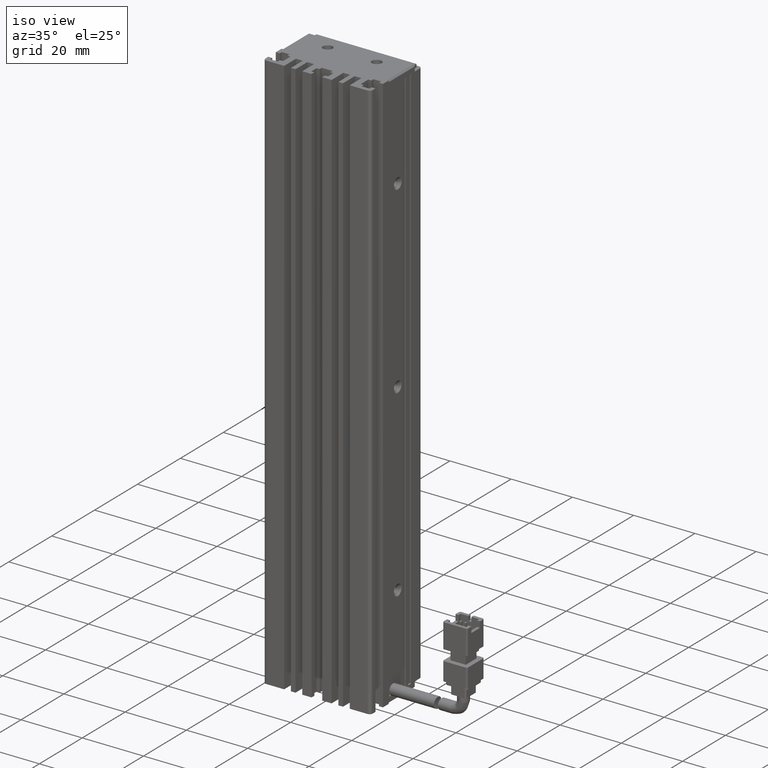
[diagram: clean part render]
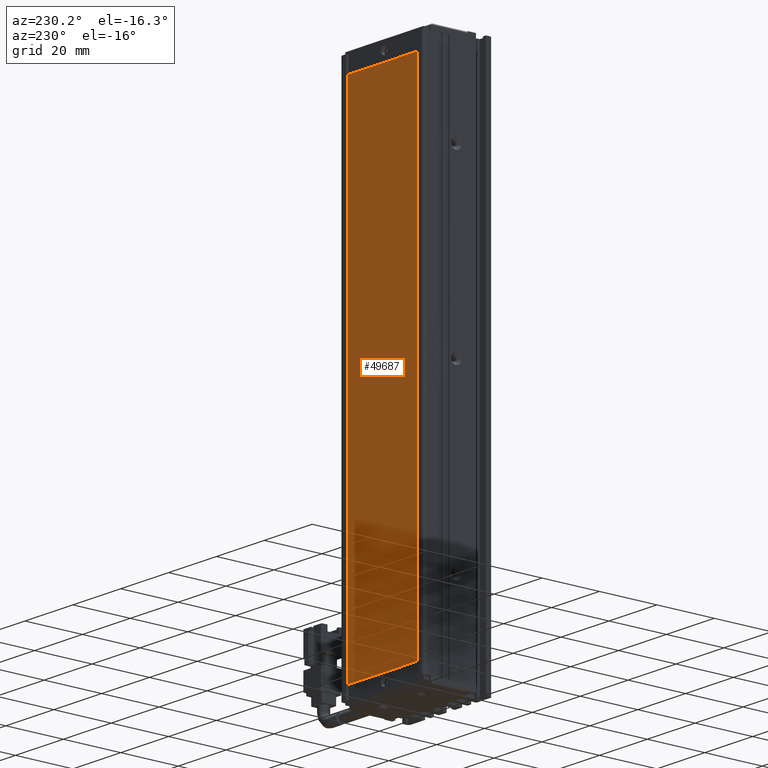
[diagram: tour spotlight — one face highlighted and labeled with its STEP entity id]
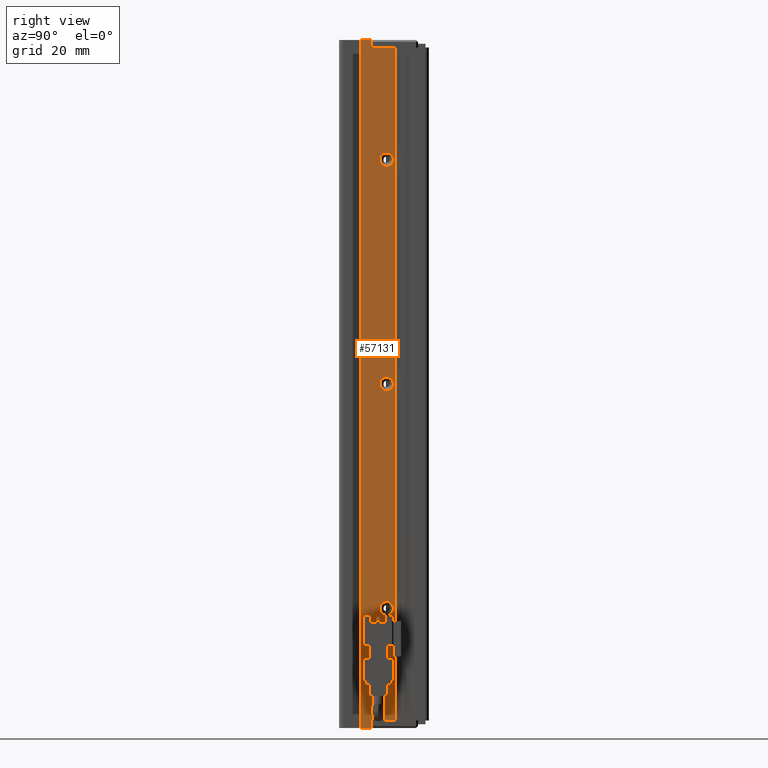
[diagram: tour spotlight — one face highlighted and labeled with its STEP entity id]
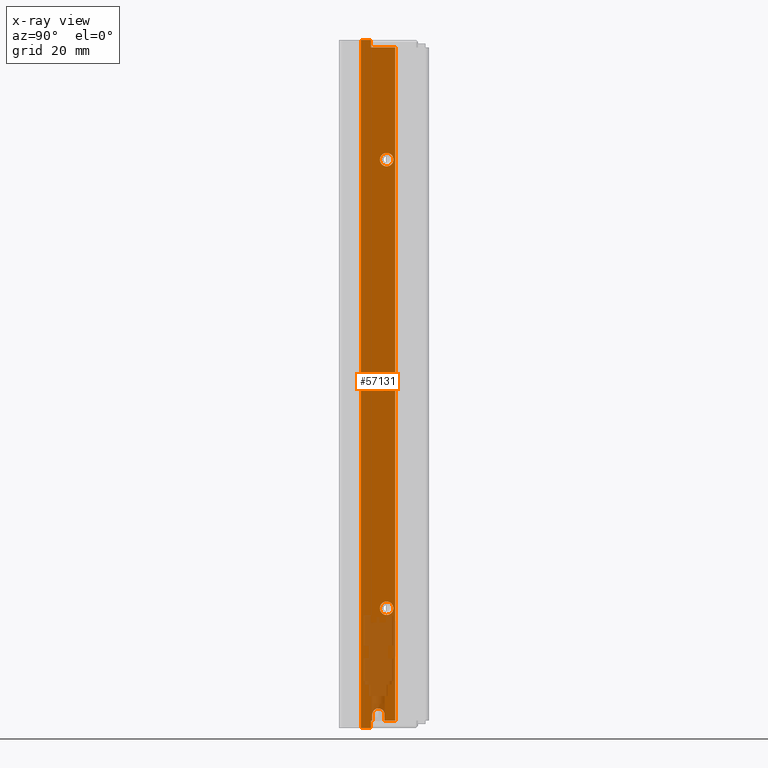
[diagram: x-ray of the same camera — body ghosted, this tour face saturated]
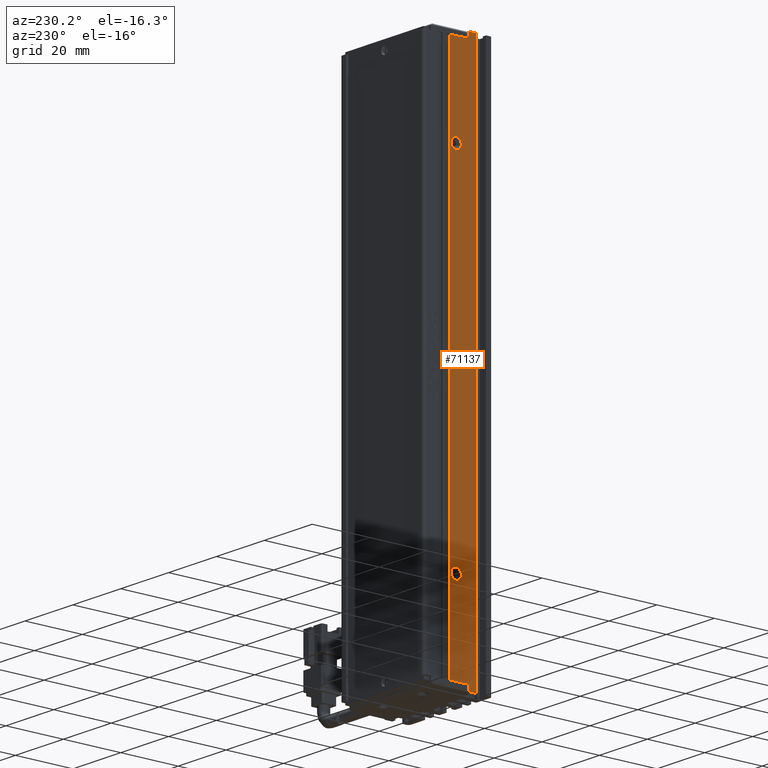
[diagram: tour spotlight — one face highlighted and labeled with its STEP entity id]
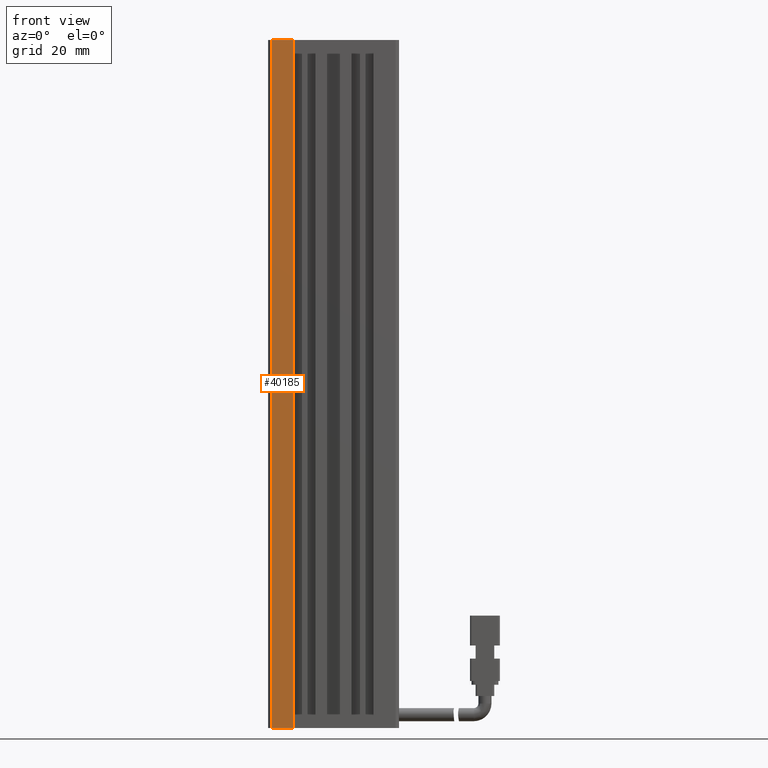
[diagram: tour spotlight — one face highlighted and labeled with its STEP entity id]
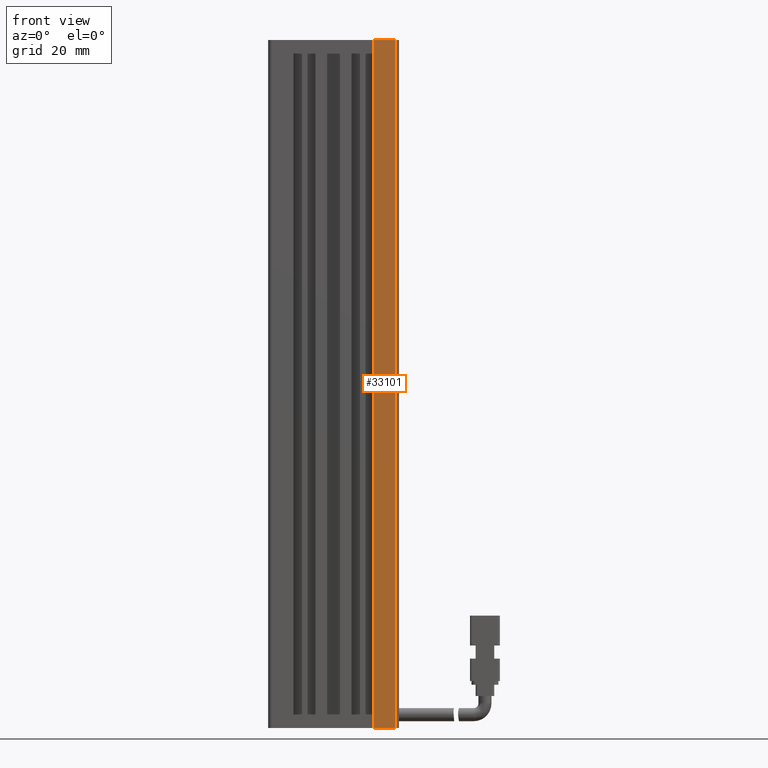
[diagram: tour spotlight — one face highlighted and labeled with its STEP entity id]
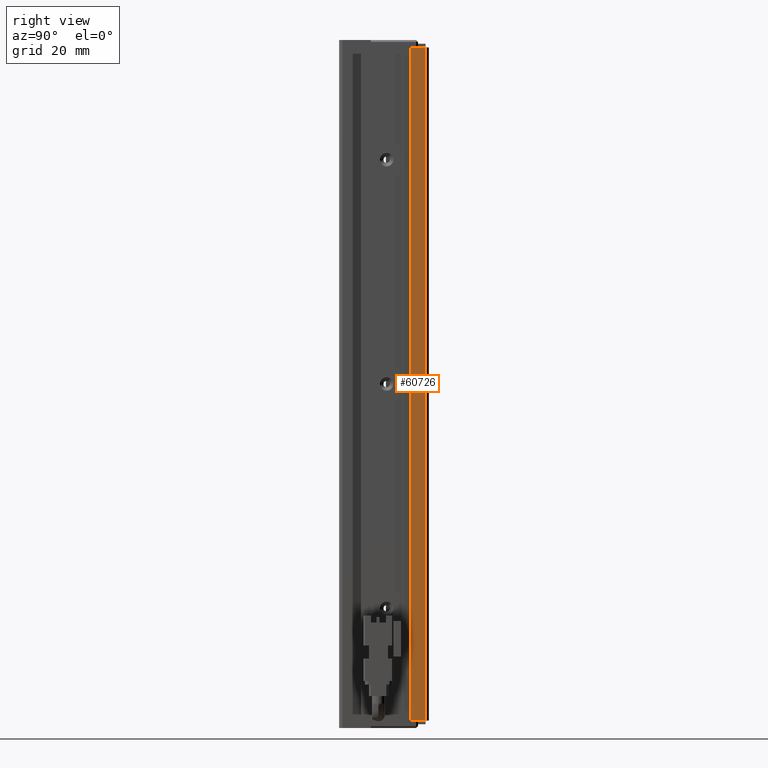
[diagram: tour spotlight — one face highlighted and labeled with its STEP entity id]
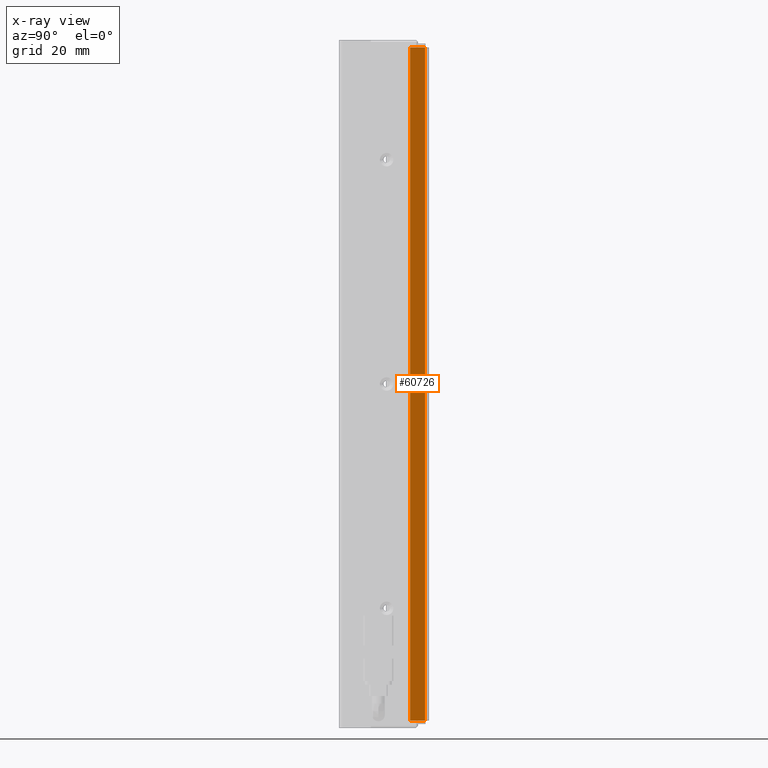
[diagram: x-ray of the same camera — body ghosted, this tour face saturated]
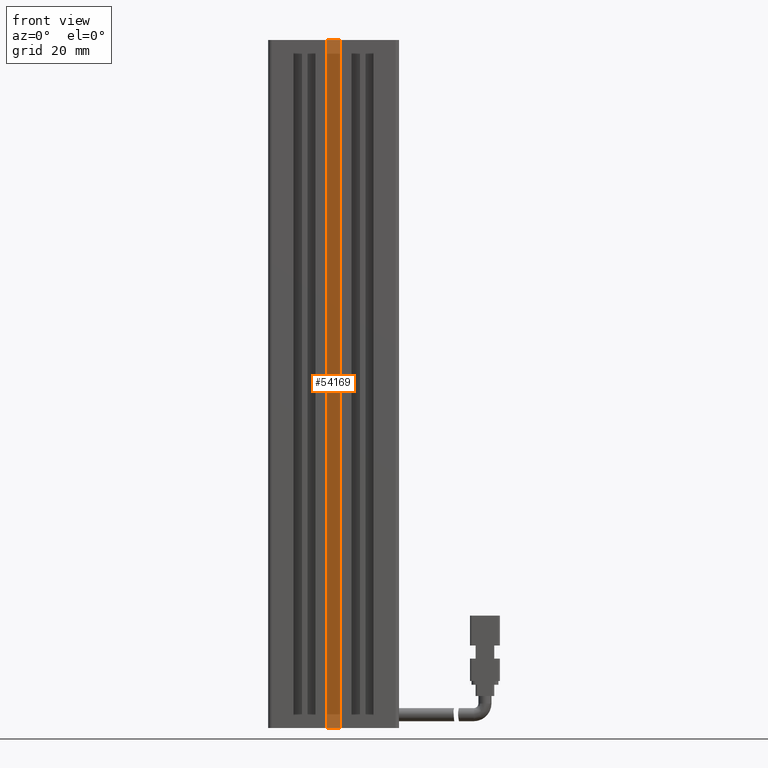
[diagram: tour spotlight — one face highlighted and labeled with its STEP entity id]
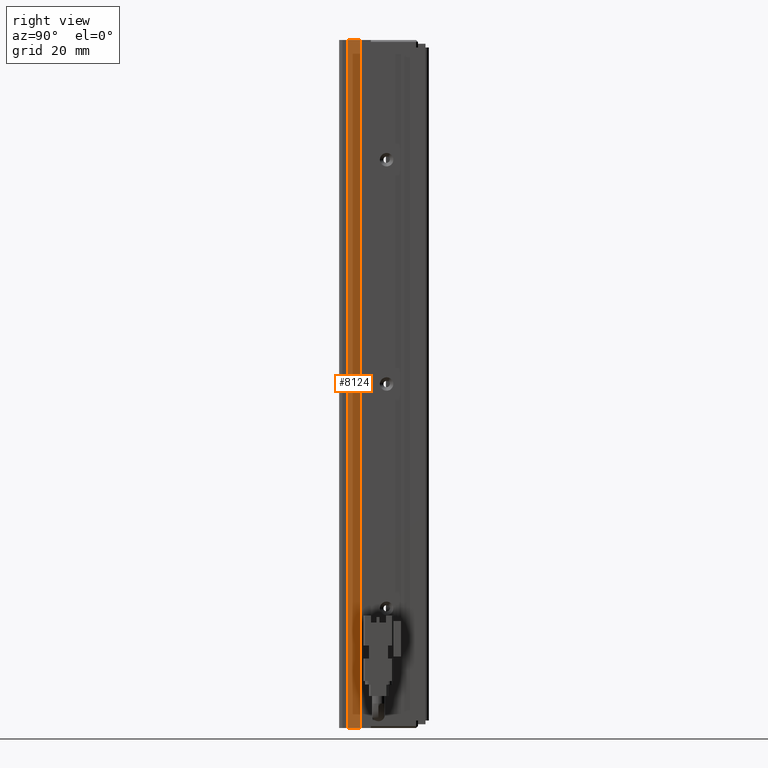
[diagram: tour spotlight — one face highlighted and labeled with its STEP entity id]
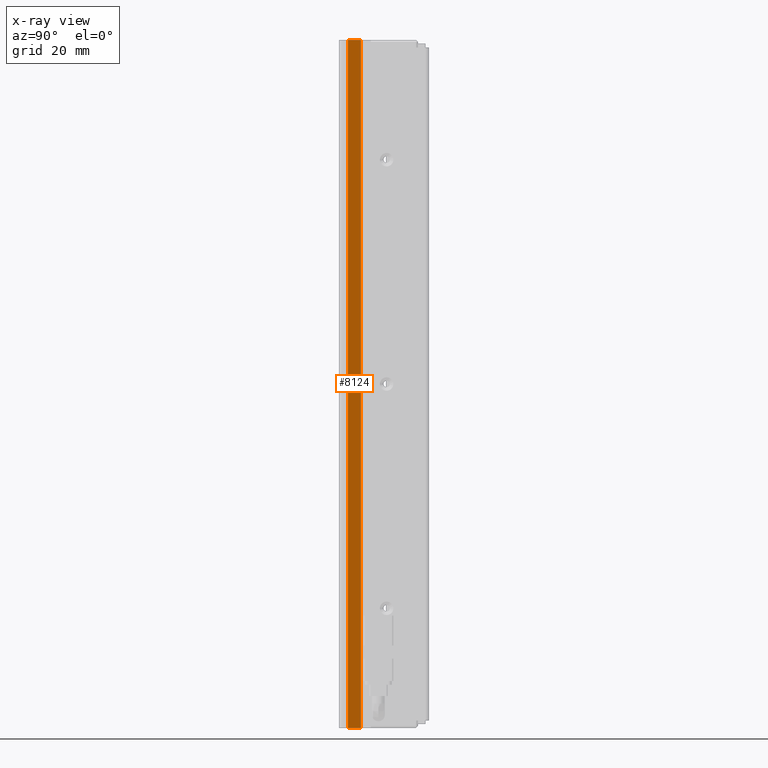
[diagram: x-ray of the same camera — body ghosted, this tour face saturated]
A machine part: a face-by-face anatomy tour. The part has 1721 B-rep faces; the first image is the clean iso view, then the 8 largest visible faces are spotlighted one at a time (largest first), each with its STEP entity span.

Face 1 — auxiliary view, entity #49687. In plain terms, the highlighted planar face has unit normal (0, 1, 0).
Definition (entity closure, byte-faithful):
#4779 = CARTESIAN_POINT ( 'NONE',  ( 25.93512251846635100, 34.29073232304837400, -30.53415309237264500 ) ) ;
#5516 = DIRECTION ( 'NONE',  ( -1.000000000000000000, 0.0000000000000000000, 0.0000000000000000000 ) ) ;
#7039 = ORIENTED_EDGE ( 'NONE', *, *, #55345, .T. ) ;
#8228 = DIRECTION ( 'NONE',  ( 1.224510688924804800E-016, 0.0000000000000000000, 1.000000000000000000 ) ) ;
#10280 = LINE ( 'NONE', #31677, #40838 ) ;
#11248 = DIRECTION ( 'NONE',  ( 0.0000000000000000000, -0.0000000000000000000, 1.000000000000000000 ) ) ;
#15078 = LINE ( 'NONE', #72955, #40874 ) ;
#18647 = LINE ( 'NONE', #20172, #70001 ) ;
#20172 = CARTESIAN_POINT ( 'NONE',  ( 25.93512251846632900, 34.29073232304837400, -200.5341530923726600 ) ) ;
#21068 = ORIENTED_EDGE ( 'NONE', *, *, #74533, .T. ) ;
#21528 = EDGE_LOOP ( 'NONE', ( #21068, #7039, #42675, #31143 ) ) ;
#27490 = CARTESIAN_POINT ( 'NONE',  ( 25.93512251846635100, 34.29073232304837400, -30.53415309237264500 ) ) ;
#30504 = EDGE_CURVE ( 'NONE', #52757, #51916, #50365, .T. ) ;
#31143 = ORIENTED_EDGE ( 'NONE', *, *, #30504, .T. ) ;
#31677 = CARTESIAN_POINT ( 'NONE',  ( 55.93512251846632900, 34.29073232304837400, -200.5341530923726600 ) ) ;
#35555 = PLANE ( 'NONE',  #71075 ) ;
#38092 = EDGE_CURVE ( 'NONE', #51368, #52757, #18647, .T. ) ;
#39291 = DIRECTION ( 'NONE',  ( 1.000000000000000000, 0.0000000000000000000, 0.0000000000000000000 ) ) ;
#40838 = VECTOR ( 'NONE', #5516, 1000.000000000000000 ) ;
#40874 = VECTOR ( 'NONE', #66829, 1000.000000000000000 ) ;
#42675 = ORIENTED_EDGE ( 'NONE', *, *, #38092, .T. ) ;
#48248 = VERTEX_POINT ( 'NONE', #61153 ) ;
#49687 = ADVANCED_FACE ( 'NONE', ( #56684 ), #35555, .T. ) ;
#50365 = LINE ( 'NONE', #27490, #76031 ) ;
#51368 = VERTEX_POINT ( 'NONE', #57229 ) ;
#51916 = VERTEX_POINT ( 'NONE', #73352 ) ;
#52757 = VERTEX_POINT ( 'NONE', #4779 ) ;
#55345 = EDGE_CURVE ( 'NONE', #48248, #51368, #10280, .T. ) ;
#56684 = FACE_OUTER_BOUND ( 'NONE', #21528, .T. ) ;
#57229 = CARTESIAN_POINT ( 'NONE',  ( 25.93512251846632900, 34.29073232304837400, -200.5341530923726600 ) ) ;
#59856 = CARTESIAN_POINT ( 'NONE',  ( 0.0000000000000000000, 34.29073232304837400, 0.0000000000000000000 ) ) ;
#60111 = DIRECTION ( 'NONE',  ( 0.0000000000000000000, 1.000000000000000000, 0.0000000000000000000 ) ) ;
#61153 = CARTESIAN_POINT ( 'NONE',  ( 55.93512251846632900, 34.29073232304837400, -200.5341530923726600 ) ) ;
#66829 = DIRECTION ( 'NONE',  ( 0.0000000000000000000, 0.0000000000000000000, -1.000000000000000000 ) ) ;
#70001 = VECTOR ( 'NONE', #8228, 1000.000000000000000 ) ;
#71075 = AXIS2_PLACEMENT_3D ( 'NONE', #59856, #60111, #11248 ) ;
#72955 = CARTESIAN_POINT ( 'NONE',  ( 55.93512251846632900, 34.29073232304837400, -30.53415309237264500 ) ) ;
#73352 = CARTESIAN_POINT ( 'NONE',  ( 55.93512251846632900, 34.29073232304837400, -30.53415309237264500 ) ) ;
#74533 = EDGE_CURVE ( 'NONE', #51916, #48248, #15078, .T. ) ;
#76031 = VECTOR ( 'NONE', #39291, 1000.000000000000000 ) ;

Face 2 — right view, entity #57131. An x-ray twin of the same camera follows (body ghosted, this face saturated) — the face is partly hidden behind the body. In plain terms, the highlighted planar face has unit normal (-1, 0, 0).
Definition (entity closure, byte-faithful):
#532 = CIRCLE ( 'NONE', #72415, 1.800000000059753800 ) ;
#1025 = FACE_BOUND ( 'NONE', #33393, .T. ) ;
#1206 = VERTEX_POINT ( 'NONE', #25660 ) ;
#2347 = CARTESIAN_POINT ( 'NONE',  ( 58.42537974681950900, 23.69073232304836900, -53.19999999999937000 ) ) ;
#2685 = CARTESIAN_POINT ( 'NONE',  ( 58.42537974681950900, 23.69073232304836900, -56.80000000000064400 ) ) ;
#3326 = DIRECTION ( 'NONE',  ( 1.000000000000000000, 0.0000000000000000000, 0.0000000000000000000 ) ) ;
#3558 = DIRECTION ( 'NONE',  ( -0.0000000000000000000, 0.0000000000000000000, 1.000000000000000000 ) ) ;
#3841 = VERTEX_POINT ( 'NONE', #52182 ) ;
#4371 = VECTOR ( 'NONE', #9233, 1000.000000000000000 ) ;
#4488 = CIRCLE ( 'NONE', #47627, 1.800000000005186300 ) ;
#5183 = ORIENTED_EDGE ( 'NONE', *, *, #35985, .F. ) ;
#5644 = VERTEX_POINT ( 'NONE', #62659 ) ;
#6420 = EDGE_CURVE ( 'NONE', #57770, #39654, #55241, .T. ) ;
#6695 = VECTOR ( 'NONE', #3558, 1000.000000000000000 ) ;
#7164 = CARTESIAN_POINT ( 'NONE',  ( 58.42537974683542500, 19.49073232304837000, -23.00000000000000700 ) ) ;
#7225 = ORIENTED_EDGE ( 'NONE', *, *, #52223, .F. ) ;
#7636 = LINE ( 'NONE', #21375, #6695 ) ;
#7652 = LINE ( 'NONE', #32975, #46652 ) ;
#8972 = CARTESIAN_POINT ( 'NONE',  ( 58.42537974683542500, 25.99073232304837700, -24.99999999999999300 ) ) ;
#9233 = DIRECTION ( 'NONE',  ( 0.0000000000000000000, 1.000000000000000000, -0.0000000000000000000 ) ) ;
#9643 = VERTEX_POINT ( 'NONE', #12424 ) ;
#10847 = CARTESIAN_POINT ( 'NONE',  ( 58.42537974683542500, 19.49073232304837000, -205.0000000000000300 ) ) ;
#11148 = LINE ( 'NONE', #78856, #61525 ) ;
#11753 = VECTOR ( 'NONE', #18906, 1000.000000000000000 ) ;
#11951 = EDGE_CURVE ( 'NONE', #57770, #12306, #25302, .T. ) ;
#12306 = VERTEX_POINT ( 'NONE', #35105 ) ;
#12424 = CARTESIAN_POINT ( 'NONE',  ( 58.42537974683542500, 16.79073232304836700, -207.0000000000000300 ) ) ;
#12550 = DIRECTION ( 'NONE',  ( -0.0000000000000000000, -2.238352872228144400E-015, -1.000000000000000000 ) ) ;
#13120 = ORIENTED_EDGE ( 'NONE', *, *, #52596, .F. ) ;
#13446 = CARTESIAN_POINT ( 'NONE',  ( 58.42537974683542500, 7.083797468354437600, -205.0000000000000300 ) ) ;
#13490 = VERTEX_POINT ( 'NONE', #10847 ) ;
#14520 = CARTESIAN_POINT ( 'NONE',  ( 58.42537974687635200, 23.69073232304837300, -115.0000000000000000 ) ) ;
#15190 = DIRECTION ( 'NONE',  ( 0.0000000000000000000, 0.0000000000000000000, -1.000000000000000000 ) ) ;
#15881 = VERTEX_POINT ( 'NONE', #69724 ) ;
#16016 = CARTESIAN_POINT ( 'NONE',  ( 58.42537974683542500, 25.99073232304837700, -205.0000000000000300 ) ) ;
#16234 = CARTESIAN_POINT ( 'NONE',  ( 58.42537974681950900, 23.69073232304836900, -176.8000000000051800 ) ) ;
#16397 = DIRECTION ( 'NONE',  ( 0.0000000000000000000, 0.0000000000000000000, 1.000000000000000000 ) ) ;
#16961 = DIRECTION ( 'NONE',  ( -0.0000000000000000000, -1.000000000000000000, 0.0000000000000000000 ) ) ;
#17282 = DIRECTION ( 'NONE',  ( 1.000000000000000000, 0.0000000000000000000, 0.0000000000000000000 ) ) ;
#18286 = AXIS2_PLACEMENT_3D ( 'NONE', #71995, #55224, #67972 ) ;
#18380 = VERTEX_POINT ( 'NONE', #8972 ) ;
#18485 = AXIS2_PLACEMENT_3D ( 'NONE', #53167, #21560, #52905 ) ;
#18906 = DIRECTION ( 'NONE',  ( -0.0000000000000000000, -1.000000000000000000, 0.0000000000000000000 ) ) ;
#19068 = CARTESIAN_POINT ( 'NONE',  ( 58.42537974683542500, 7.083797468354437600, -23.00000000000000700 ) ) ;
#19930 = DIRECTION ( 'NONE',  ( -0.0000000000000000000, 0.0000000000000000000, 1.000000000000000000 ) ) ;
#20125 = FACE_BOUND ( 'NONE', #52433, .T. ) ;
#20549 = ORIENTED_EDGE ( 'NONE', *, *, #58882, .F. ) ;
#20921 = EDGE_CURVE ( 'NONE', #18380, #50073, #22933, .T. ) ;
#21152 = EDGE_LOOP ( 'NONE', ( #47135, #75104, #24435, #55679, #57674, #66043, #60014, #70140, #32438, #7225, #67246, #20549 ) ) ;
#21153 = CARTESIAN_POINT ( 'NONE',  ( 58.42537974687635200, 23.69073232304837300, -115.0000000000000000 ) ) ;
#21375 = CARTESIAN_POINT ( 'NONE',  ( 58.42537974683542500, 19.49073232304837000, -23.00000000000000700 ) ) ;
#21404 = DIRECTION ( 'NONE',  ( -0.0000000000000000000, -0.0000000000000000000, -1.000000000000000000 ) ) ;
#21560 = DIRECTION ( 'NONE',  ( 1.000000000000000000, 0.0000000000000000000, 0.0000000000000000000 ) ) ;
#22933 = LINE ( 'NONE', #52254, #53351 ) ;
#23533 = CARTESIAN_POINT ( 'NONE',  ( 58.42537974687635200, 23.69073232304837300, -116.8000000000597500 ) ) ;
#24435 = ORIENTED_EDGE ( 'NONE', *, *, #6420, .T. ) ;
#24949 = VERTEX_POINT ( 'NONE', #74844 ) ;
#25302 = CIRCLE ( 'NONE', #18286, 1.650000000000002100 ) ;
#25660 = CARTESIAN_POINT ( 'NONE',  ( 58.42537974683542500, 19.49073232304837000, -24.99999999999999300 ) ) ;
#26852 = ORIENTED_EDGE ( 'NONE', *, *, #56681, .F. ) ;
#27081 = CIRCLE ( 'NONE', #62831, 1.800000000059753800 ) ;
#27302 = DIRECTION ( 'NONE',  ( 0.0000000000000000000, 0.0000000000000000000, -1.000000000000000000 ) ) ;
#27602 = AXIS2_PLACEMENT_3D ( 'NONE', #64723, #59160, #16397 ) ;
#28261 = EDGE_CURVE ( 'NONE', #5644, #46062, #27081, .T. ) ;
#29165 = CARTESIAN_POINT ( 'NONE',  ( 58.42537974683542500, 7.083797468354437600, -205.0000000000000300 ) ) ;
#29729 = AXIS2_PLACEMENT_3D ( 'NONE', #71466, #17282, #42324 ) ;
#29768 = DIRECTION ( 'NONE',  ( 1.000000000000000000, 0.0000000000000000000, 0.0000000000000000000 ) ) ;
#30000 = VERTEX_POINT ( 'NONE', #53306 ) ;
#30789 = CIRCLE ( 'NONE', #29729, 1.800000000000634400 ) ;
#30952 = VERTEX_POINT ( 'NONE', #2347 ) ;
#32438 = ORIENTED_EDGE ( 'NONE', *, *, #43163, .F. ) ;
#32975 = CARTESIAN_POINT ( 'NONE',  ( 58.42537974683542500, 16.79073232304836700, -23.00000000000000700 ) ) ;
#33393 = EDGE_LOOP ( 'NONE', ( #44428, #43331 ) ) ;
#35105 = CARTESIAN_POINT ( 'NONE',  ( 58.42537974683541800, 19.84073232304836800, -203.4500000000000200 ) ) ;
#35276 = AXIS2_PLACEMENT_3D ( 'NONE', #63229, #63483, #15190 ) ;
#35295 = LINE ( 'NONE', #60030, #59862 ) ;
#35985 = EDGE_CURVE ( 'NONE', #30000, #70262, #4488, .T. ) ;
#36203 = DIRECTION ( 'NONE',  ( 0.0000000000000000000, 0.0000000000000000000, -1.000000000000000000 ) ) ;
#36782 = CARTESIAN_POINT ( 'NONE',  ( 58.42537974683542500, 19.49073232304837000, -22.99999999999999300 ) ) ;
#36854 = LINE ( 'NONE', #19068, #4371 ) ;
#37136 = CARTESIAN_POINT ( 'NONE',  ( 58.42537974683541800, 23.14073232304837200, -203.4500000000000200 ) ) ;
#37792 = CIRCLE ( 'NONE', #18485, 1.800000000000634400 ) ;
#37864 = LINE ( 'NONE', #13446, #45440 ) ;
#38539 = EDGE_CURVE ( 'NONE', #15881, #72570, #36854, .T. ) ;
#38594 = EDGE_CURVE ( 'NONE', #46062, #5644, #532, .T. ) ;
#39252 = FACE_BOUND ( 'NONE', #46192, .T. ) ;
#39654 = VERTEX_POINT ( 'NONE', #57113 ) ;
#42324 = DIRECTION ( 'NONE',  ( 0.0000000000000000000, 0.0000000000000000000, -1.000000000000000000 ) ) ;
#42662 = EDGE_CURVE ( 'NONE', #70262, #30000, #75209, .T. ) ;
#42727 = ORIENTED_EDGE ( 'NONE', *, *, #42662, .F. ) ;
#43163 = EDGE_CURVE ( 'NONE', #9643, #15881, #7652, .T. ) ;
#43331 = ORIENTED_EDGE ( 'NONE', *, *, #28261, .F. ) ;
#44428 = ORIENTED_EDGE ( 'NONE', *, *, #38594, .F. ) ;
#44745 = EDGE_CURVE ( 'NONE', #50073, #39654, #71640, .T. ) ;
#44878 = VECTOR ( 'NONE', #12550, 1000.000000000000000 ) ;
#45440 = VECTOR ( 'NONE', #74802, 1000.000000000000000 ) ;
#46062 = VERTEX_POINT ( 'NONE', #23533 ) ;
#46192 = EDGE_LOOP ( 'NONE', ( #13120, #26852 ) ) ;
#46652 = VECTOR ( 'NONE', #75647, 1000.000000000000000 ) ;
#47135 = ORIENTED_EDGE ( 'NONE', *, *, #58049, .T. ) ;
#47627 = AXIS2_PLACEMENT_3D ( 'NONE', #71941, #29768, #36203 ) ;
#47793 = CARTESIAN_POINT ( 'NONE',  ( 58.42537974683542500, 7.083797468354437600, -207.0000000000000300 ) ) ;
#50073 = VERTEX_POINT ( 'NONE', #16016 ) ;
#51786 = PLANE ( 'NONE',  #27602 ) ;
#52182 = CARTESIAN_POINT ( 'NONE',  ( 58.42537974683542500, 19.84073232304836800, -205.0000000000000300 ) ) ;
#52223 = EDGE_CURVE ( 'NONE', #24949, #9643, #65360, .T. ) ;
#52254 = CARTESIAN_POINT ( 'NONE',  ( 58.42537974683542500, 25.99073232304837700, -23.00000000000000700 ) ) ;
#52433 = EDGE_LOOP ( 'NONE', ( #42727, #5183 ) ) ;
#52596 = EDGE_CURVE ( 'NONE', #78684, #30952, #37792, .T. ) ;
#52905 = DIRECTION ( 'NONE',  ( 0.0000000000000000000, 0.0000000000000000000, -1.000000000000000000 ) ) ;
#53167 = CARTESIAN_POINT ( 'NONE',  ( 58.42537974681950900, 23.69073232304836900, -55.00000000000000700 ) ) ;
#53306 = CARTESIAN_POINT ( 'NONE',  ( 58.42537974681950900, 23.69073232304836900, -173.1999999999948200 ) ) ;
#53351 = VECTOR ( 'NONE', #21404, 1000.000000000000000 ) ;
#55224 = DIRECTION ( 'NONE',  ( 1.000000000000000000, 5.687617954022316600E-016, -0.0000000000000000000 ) ) ;
#55241 = LINE ( 'NONE', #66723, #44878 ) ;
#55679 = ORIENTED_EDGE ( 'NONE', *, *, #44745, .F. ) ;
#56681 = EDGE_CURVE ( 'NONE', #30952, #78684, #30789, .T. ) ;
#57113 = CARTESIAN_POINT ( 'NONE',  ( 58.42537974683542500, 23.14073232304836500, -205.0000000000000300 ) ) ;
#57131 = ADVANCED_FACE ( 'NONE', ( #20125, #1025, #69515, #39252 ), #51786, .F. ) ;
#57674 = ORIENTED_EDGE ( 'NONE', *, *, #20921, .F. ) ;
#57770 = VERTEX_POINT ( 'NONE', #37136 ) ;
#58049 = EDGE_CURVE ( 'NONE', #3841, #12306, #35295, .T. ) ;
#58882 = EDGE_CURVE ( 'NONE', #3841, #13490, #37864, .T. ) ;
#59160 = DIRECTION ( 'NONE',  ( -1.000000000000000000, 0.0000000000000000000, 0.0000000000000000000 ) ) ;
#59862 = VECTOR ( 'NONE', #65362, 1000.000000000000000 ) ;
#60014 = ORIENTED_EDGE ( 'NONE', *, *, #75402, .T. ) ;
#60024 = EDGE_CURVE ( 'NONE', #1206, #18380, #11148, .T. ) ;
#60030 = CARTESIAN_POINT ( 'NONE',  ( 58.42537974683542500, 19.84073232304837100, -205.0000000000000300 ) ) ;
#61525 = VECTOR ( 'NONE', #72496, 1000.000000000000000 ) ;
#62659 = CARTESIAN_POINT ( 'NONE',  ( 58.42537974687635200, 23.69073232304837300, -113.1999999999402500 ) ) ;
#62831 = AXIS2_PLACEMENT_3D ( 'NONE', #14520, #63338, #75847 ) ;
#63229 = CARTESIAN_POINT ( 'NONE',  ( 58.42537974681950900, 23.69073232304836900, -175.0000000000000000 ) ) ;
#63338 = DIRECTION ( 'NONE',  ( 1.000000000000000000, 0.0000000000000000000, 0.0000000000000000000 ) ) ;
#63483 = DIRECTION ( 'NONE',  ( 1.000000000000000000, 0.0000000000000000000, 0.0000000000000000000 ) ) ;
#64723 = CARTESIAN_POINT ( 'NONE',  ( 58.42537974683542500, 7.083797468354437600, -23.00000000000000700 ) ) ;
#65360 = LINE ( 'NONE', #47793, #71987 ) ;
#65362 = DIRECTION ( 'NONE',  ( -0.0000000000000000000, -1.119176436114072200E-015, 1.000000000000000000 ) ) ;
#66043 = ORIENTED_EDGE ( 'NONE', *, *, #60024, .F. ) ;
#66723 = CARTESIAN_POINT ( 'NONE',  ( 58.42537974683542500, 23.14073232304836500, -205.0000000000000300 ) ) ;
#67246 = ORIENTED_EDGE ( 'NONE', *, *, #73298, .T. ) ;
#67972 = DIRECTION ( 'NONE',  ( 0.0000000000000000000, 1.000000000000000000, 0.0000000000000000000 ) ) ;
#69515 = FACE_OUTER_BOUND ( 'NONE', #21152, .T. ) ;
#69724 = CARTESIAN_POINT ( 'NONE',  ( 58.42537974683542500, 16.79073232304836700, -22.99999999999999300 ) ) ;
#70140 = ORIENTED_EDGE ( 'NONE', *, *, #38539, .F. ) ;
#70262 = VERTEX_POINT ( 'NONE', #16234 ) ;
#71466 = CARTESIAN_POINT ( 'NONE',  ( 58.42537974681950900, 23.69073232304836900, -55.00000000000000700 ) ) ;
#71640 = LINE ( 'NONE', #29165, #11753 ) ;
#71689 = VECTOR ( 'NONE', #19930, 1000.000000000000000 ) ;
#71941 = CARTESIAN_POINT ( 'NONE',  ( 58.42537974681950900, 23.69073232304836900, -175.0000000000000000 ) ) ;
#71987 = VECTOR ( 'NONE', #16961, 1000.000000000000000 ) ;
#71995 = CARTESIAN_POINT ( 'NONE',  ( 58.42537974683541800, 21.49073232304837000, -203.4500000000000200 ) ) ;
#72415 = AXIS2_PLACEMENT_3D ( 'NONE', #21153, #3326, #27302 ) ;
#72496 = DIRECTION ( 'NONE',  ( 0.0000000000000000000, 1.000000000000000000, -0.0000000000000000000 ) ) ;
#72570 = VERTEX_POINT ( 'NONE', #36782 ) ;
#73298 = EDGE_CURVE ( 'NONE', #24949, #13490, #7636, .T. ) ;
#74553 = LINE ( 'NONE', #7164, #71689 ) ;
#74802 = DIRECTION ( 'NONE',  ( -0.0000000000000000000, -1.000000000000000000, 0.0000000000000000000 ) ) ;
#74844 = CARTESIAN_POINT ( 'NONE',  ( 58.42537974683542500, 19.49073232304837000, -207.0000000000000300 ) ) ;
#75104 = ORIENTED_EDGE ( 'NONE', *, *, #11951, .F. ) ;
#75209 = CIRCLE ( 'NONE', #35276, 1.800000000005186300 ) ;
#75402 = EDGE_CURVE ( 'NONE', #1206, #72570, #74553, .T. ) ;
#75647 = DIRECTION ( 'NONE',  ( 0.0000000000000000000, 0.0000000000000000000, 1.000000000000000000 ) ) ;
#75847 = DIRECTION ( 'NONE',  ( 0.0000000000000000000, 0.0000000000000000000, -1.000000000000000000 ) ) ;
#78684 = VERTEX_POINT ( 'NONE', #2685 ) ;
#78856 = CARTESIAN_POINT ( 'NONE',  ( 58.42537974683542500, 7.083797468354437600, -25.00000000000000700 ) ) ;

Face 3 — auxiliary view, entity #71137. In plain terms, the highlighted planar face has unit normal (-1, 0, 0).
Definition (entity closure, byte-faithful):
#313 = FACE_BOUND ( 'NONE', #52004, .T. ) ;
#586 = LINE ( 'NONE', #39156, #65290 ) ;
#642 = CARTESIAN_POINT ( 'NONE',  ( 23.42537974685134100, 23.69073232304836900, -55.00000000000000700 ) ) ;
#824 = CARTESIAN_POINT ( 'NONE',  ( 23.42537974683542100, 16.79073232304837400, -22.99999999999999300 ) ) ;
#857 = EDGE_CURVE ( 'NONE', #9375, #8310, #22277, .T. ) ;
#2753 = VERTEX_POINT ( 'NONE', #824 ) ;
#3045 = CARTESIAN_POINT ( 'NONE',  ( 23.42537974679449800, 23.69073232304837300, -116.8000000000597500 ) ) ;
#3132 = VERTEX_POINT ( 'NONE', #64587 ) ;
#3237 = DIRECTION ( 'NONE',  ( 0.0000000000000000000, 0.0000000000000000000, 1.000000000000000000 ) ) ;
#3436 = AXIS2_PLACEMENT_3D ( 'NONE', #51253, #25994, #56508 ) ;
#4066 = ORIENTED_EDGE ( 'NONE', *, *, #47383, .T. ) ;
#4134 = FACE_BOUND ( 'NONE', #55193, .T. ) ;
#4161 = DIRECTION ( 'NONE',  ( 0.0000000000000000000, 0.0000000000000000000, 1.000000000000000000 ) ) ;
#4603 = CARTESIAN_POINT ( 'NONE',  ( 23.42537974683542100, 16.79073232304837400, -23.00000000000000700 ) ) ;
#5345 = CARTESIAN_POINT ( 'NONE',  ( 23.42537974679449800, 23.69073232304837300, -113.1999999999402500 ) ) ;
#6742 = CARTESIAN_POINT ( 'NONE',  ( 23.42537974683542100, 16.79073232304837400, -207.0000000000000300 ) ) ;
#6909 = VERTEX_POINT ( 'NONE', #42606 ) ;
#7083 = VECTOR ( 'NONE', #77959, 1000.000000000000000 ) ;
#7286 = CARTESIAN_POINT ( 'NONE',  ( 23.42537974683542100, 7.083797468354437600, -23.00000000000000700 ) ) ;
#7303 = EDGE_CURVE ( 'NONE', #74474, #58018, #44742, .T. ) ;
#8310 = VERTEX_POINT ( 'NONE', #15077 ) ;
#9375 = VERTEX_POINT ( 'NONE', #52084 ) ;
#9861 = DIRECTION ( 'NONE',  ( -0.0000000000000000000, -1.000000000000000000, 0.0000000000000000000 ) ) ;
#10924 = CARTESIAN_POINT ( 'NONE',  ( 23.42537974683542100, 19.49073232304836600, -23.00000000000000700 ) ) ;
#11408 = LINE ( 'NONE', #10924, #62707 ) ;
#11431 = CARTESIAN_POINT ( 'NONE',  ( 23.42537974685134100, 23.69073232304836900, -53.19999999999482300 ) ) ;
#11757 = EDGE_CURVE ( 'NONE', #73131, #9375, #54870, .T. ) ;
#11806 = ORIENTED_EDGE ( 'NONE', *, *, #857, .T. ) ;
#12222 = EDGE_CURVE ( 'NONE', #61752, #39180, #69872, .T. ) ;
#12308 = EDGE_CURVE ( 'NONE', #17132, #41602, #19510, .T. ) ;
#13189 = ORIENTED_EDGE ( 'NONE', *, *, #64689, .T. ) ;
#13203 = CARTESIAN_POINT ( 'NONE',  ( 23.42537974683542100, 25.99073232304837300, -24.99999999999999300 ) ) ;
#13981 = PLANE ( 'NONE',  #31319 ) ;
#14024 = CARTESIAN_POINT ( 'NONE',  ( 23.42537974683542100, 7.083797468354437600, -23.00000000000000700 ) ) ;
#14092 = DIRECTION ( 'NONE',  ( 1.000000000000000000, -0.0000000000000000000, -0.0000000000000000000 ) ) ;
#14887 = DIRECTION ( 'NONE',  ( 0.0000000000000000000, -0.0000000000000000000, -1.000000000000000000 ) ) ;
#15077 = CARTESIAN_POINT ( 'NONE',  ( 23.42537974683542100, 19.49073232304836600, -205.0000000000000300 ) ) ;
#15421 = DIRECTION ( 'NONE',  ( 0.0000000000000000000, 0.0000000000000000000, 1.000000000000000000 ) ) ;
#16080 = EDGE_CURVE ( 'NONE', #41602, #2753, #38559, .T. ) ;
#16203 = DIRECTION ( 'NONE',  ( 1.000000000000000000, -0.0000000000000000000, -0.0000000000000000000 ) ) ;
#16537 = FACE_BOUND ( 'NONE', #29589, .T. ) ;
#17132 = VERTEX_POINT ( 'NONE', #52804 ) ;
#17208 = ORIENTED_EDGE ( 'NONE', *, *, #12308, .T. ) ;
#18864 = AXIS2_PLACEMENT_3D ( 'NONE', #24433, #14092, #4161 ) ;
#19510 = LINE ( 'NONE', #22767, #33865 ) ;
#19816 = DIRECTION ( 'NONE',  ( 0.0000000000000000000, 0.0000000000000000000, 1.000000000000000000 ) ) ;
#22277 = LINE ( 'NONE', #32838, #60327 ) ;
#22601 = ORIENTED_EDGE ( 'NONE', *, *, #25969, .T. ) ;
#22767 = CARTESIAN_POINT ( 'NONE',  ( 23.42537974683542100, 7.083797468354437600, -207.0000000000000300 ) ) ;
#24433 = CARTESIAN_POINT ( 'NONE',  ( 23.42537974685134100, 23.69073232304836900, -55.00000000000000700 ) ) ;
#24900 = CIRCLE ( 'NONE', #57479, 1.800000000059753800 ) ;
#25645 = DIRECTION ( 'NONE',  ( -1.000000000000000000, 0.0000000000000000000, 0.0000000000000000000 ) ) ;
#25969 = EDGE_CURVE ( 'NONE', #62677, #69903, #24900, .T. ) ;
#25971 = ORIENTED_EDGE ( 'NONE', *, *, #16080, .T. ) ;
#25994 = DIRECTION ( 'NONE',  ( 1.000000000000000000, -0.0000000000000000000, -0.0000000000000000000 ) ) ;
#28106 = ORIENTED_EDGE ( 'NONE', *, *, #67904, .T. ) ;
#28882 = VECTOR ( 'NONE', #75107, 1000.000000000000000 ) ;
#29589 = EDGE_LOOP ( 'NONE', ( #66472, #22601 ) ) ;
#30149 = EDGE_LOOP ( 'NONE', ( #4066, #28106, #66624, #40780, #11806, #77349, #17208, #25971 ) ) ;
#30170 = ORIENTED_EDGE ( 'NONE', *, *, #7303, .T. ) ;
#31319 = AXIS2_PLACEMENT_3D ( 'NONE', #7286, #25645, #68396 ) ;
#31840 = EDGE_CURVE ( 'NONE', #6909, #73131, #53579, .T. ) ;
#32838 = CARTESIAN_POINT ( 'NONE',  ( 23.42537974683542100, 7.083797468354437600, -205.0000000000000300 ) ) ;
#33102 = VECTOR ( 'NONE', #46281, 1000.000000000000000 ) ;
#33865 = VECTOR ( 'NONE', #65782, 1000.000000000000000 ) ;
#36974 = DIRECTION ( 'NONE',  ( 1.000000000000000000, -0.0000000000000000000, -0.0000000000000000000 ) ) ;
#37491 = LINE ( 'NONE', #14024, #28882 ) ;
#38007 = EDGE_CURVE ( 'NONE', #8310, #17132, #586, .T. ) ;
#38404 = CARTESIAN_POINT ( 'NONE',  ( 23.42537974683542100, 25.99073232304837300, -23.00000000000000700 ) ) ;
#38559 = LINE ( 'NONE', #4603, #7083 ) ;
#39156 = CARTESIAN_POINT ( 'NONE',  ( 23.42537974683542500, 19.49073232304836600, -23.00000000000000700 ) ) ;
#39180 = VERTEX_POINT ( 'NONE', #40060 ) ;
#39273 = DIRECTION ( 'NONE',  ( 1.000000000000000000, -0.0000000000000000000, -0.0000000000000000000 ) ) ;
#40060 = CARTESIAN_POINT ( 'NONE',  ( 23.42537974685134100, 23.69073232304836900, -176.8000000000006400 ) ) ;
#40177 = DIRECTION ( 'NONE',  ( 0.0000000000000000000, 0.0000000000000000000, 1.000000000000000000 ) ) ;
#40780 = ORIENTED_EDGE ( 'NONE', *, *, #11757, .T. ) ;
#41602 = VERTEX_POINT ( 'NONE', #6742 ) ;
#42606 = CARTESIAN_POINT ( 'NONE',  ( 23.42537974683542100, 19.49073232304836600, -24.99999999999999300 ) ) ;
#44180 = FACE_OUTER_BOUND ( 'NONE', #30149, .T. ) ;
#44742 = CIRCLE ( 'NONE', #18864, 1.800000000005186300 ) ;
#45655 = EDGE_CURVE ( 'NONE', #58018, #74474, #78004, .T. ) ;
#46281 = DIRECTION ( 'NONE',  ( -0.0000000000000000000, -0.0000000000000000000, -1.000000000000000000 ) ) ;
#47383 = EDGE_CURVE ( 'NONE', #2753, #3132, #37491, .T. ) ;
#51253 = CARTESIAN_POINT ( 'NONE',  ( 23.42537974679449800, 23.69073232304837300, -115.0000000000000000 ) ) ;
#51342 = AXIS2_PLACEMENT_3D ( 'NONE', #642, #36974, #19816 ) ;
#51884 = CIRCLE ( 'NONE', #3436, 1.800000000059753800 ) ;
#52004 = EDGE_LOOP ( 'NONE', ( #56345, #30170 ) ) ;
#52084 = CARTESIAN_POINT ( 'NONE',  ( 23.42537974683542100, 25.99073232304837300, -205.0000000000000300 ) ) ;
#52551 = CARTESIAN_POINT ( 'NONE',  ( 23.42537974685134100, 23.69073232304836900, -175.0000000000000000 ) ) ;
#52804 = CARTESIAN_POINT ( 'NONE',  ( 23.42537974683542100, 19.49073232304836600, -207.0000000000000300 ) ) ;
#53579 = LINE ( 'NONE', #68668, #58389 ) ;
#53930 = AXIS2_PLACEMENT_3D ( 'NONE', #57737, #39273, #3237 ) ;
#54870 = LINE ( 'NONE', #38404, #33102 ) ;
#55193 = EDGE_LOOP ( 'NONE', ( #76290, #13189 ) ) ;
#56345 = ORIENTED_EDGE ( 'NONE', *, *, #45655, .T. ) ;
#56508 = DIRECTION ( 'NONE',  ( 0.0000000000000000000, 0.0000000000000000000, 1.000000000000000000 ) ) ;
#57479 = AXIS2_PLACEMENT_3D ( 'NONE', #64018, #16203, #15421 ) ;
#57737 = CARTESIAN_POINT ( 'NONE',  ( 23.42537974685134100, 23.69073232304836900, -175.0000000000000000 ) ) ;
#58018 = VERTEX_POINT ( 'NONE', #11431 ) ;
#58389 = VECTOR ( 'NONE', #62561, 1000.000000000000000 ) ;
#60054 = DIRECTION ( 'NONE',  ( 0.0000000000000000000, -0.0000000000000000000, -1.000000000000000000 ) ) ;
#60327 = VECTOR ( 'NONE', #9861, 1000.000000000000000 ) ;
#61752 = VERTEX_POINT ( 'NONE', #70565 ) ;
#61888 = CIRCLE ( 'NONE', #53930, 1.800000000000634400 ) ;
#62561 = DIRECTION ( 'NONE',  ( 0.0000000000000000000, 1.000000000000000000, 0.0000000000000000000 ) ) ;
#62677 = VERTEX_POINT ( 'NONE', #3045 ) ;
#62707 = VECTOR ( 'NONE', #60054, 1000.000000000000000 ) ;
#63628 = AXIS2_PLACEMENT_3D ( 'NONE', #52551, #64473, #40177 ) ;
#64018 = CARTESIAN_POINT ( 'NONE',  ( 23.42537974679449800, 23.69073232304837300, -115.0000000000000000 ) ) ;
#64473 = DIRECTION ( 'NONE',  ( 1.000000000000000000, -0.0000000000000000000, -0.0000000000000000000 ) ) ;
#64587 = CARTESIAN_POINT ( 'NONE',  ( 23.42537974683542100, 19.49073232304836600, -22.99999999999999300 ) ) ;
#64689 = EDGE_CURVE ( 'NONE', #39180, #61752, #61888, .T. ) ;
#65290 = VECTOR ( 'NONE', #14887, 1000.000000000000000 ) ;
#65530 = CARTESIAN_POINT ( 'NONE',  ( 23.42537974685134100, 23.69073232304836900, -56.80000000000519100 ) ) ;
#65782 = DIRECTION ( 'NONE',  ( -0.0000000000000000000, -1.000000000000000000, 0.0000000000000000000 ) ) ;
#66472 = ORIENTED_EDGE ( 'NONE', *, *, #72191, .T. ) ;
#66624 = ORIENTED_EDGE ( 'NONE', *, *, #31840, .T. ) ;
#67904 = EDGE_CURVE ( 'NONE', #3132, #6909, #11408, .T. ) ;
#68396 = DIRECTION ( 'NONE',  ( 0.0000000000000000000, 0.0000000000000000000, 1.000000000000000000 ) ) ;
#68668 = CARTESIAN_POINT ( 'NONE',  ( 23.42537974683542500, 34.99073232304837700, -25.00000000000000700 ) ) ;
#69872 = CIRCLE ( 'NONE', #63628, 1.800000000000634400 ) ;
#69903 = VERTEX_POINT ( 'NONE', #5345 ) ;
#70565 = CARTESIAN_POINT ( 'NONE',  ( 23.42537974685134100, 23.69073232304836900, -173.1999999999993600 ) ) ;
#71137 = ADVANCED_FACE ( 'NONE', ( #44180, #16537, #313, #4134 ), #13981, .T. ) ;
#72191 = EDGE_CURVE ( 'NONE', #69903, #62677, #51884, .T. ) ;
#73131 = VERTEX_POINT ( 'NONE', #13203 ) ;
#74474 = VERTEX_POINT ( 'NONE', #65530 ) ;
#75107 = DIRECTION ( 'NONE',  ( 0.0000000000000000000, 1.000000000000000000, -0.0000000000000000000 ) ) ;
#76290 = ORIENTED_EDGE ( 'NONE', *, *, #12222, .T. ) ;
#77349 = ORIENTED_EDGE ( 'NONE', *, *, #38007, .T. ) ;
#77959 = DIRECTION ( 'NONE',  ( 0.0000000000000000000, 0.0000000000000000000, 1.000000000000000000 ) ) ;
#78004 = CIRCLE ( 'NONE', #51342, 1.800000000005186300 ) ;

Face 4 — front view, entity #40185. In plain terms, the highlighted planar face has unit normal (0, -1, 0).
Definition (entity closure, byte-faithful):
#2879 = VECTOR ( 'NONE', #66799, 1000.000000000000000 ) ;
#6442 = VERTEX_POINT ( 'NONE', #55306 ) ;
#8708 = LINE ( 'NONE', #60225, #55243 ) ;
#8759 = ORIENTED_EDGE ( 'NONE', *, *, #34995, .T. ) ;
#11567 = VERTEX_POINT ( 'NONE', #42925 ) ;
#14320 = CARTESIAN_POINT ( 'NONE',  ( 24.42537974683542500, 10.99073232304837000, -23.00000000000000700 ) ) ;
#14978 = PLANE ( 'NONE',  #47181 ) ;
#15013 = ORIENTED_EDGE ( 'NONE', *, *, #30181, .T. ) ;
#17730 = VECTOR ( 'NONE', #23084, 1000.000000000000000 ) ;
#18442 = DIRECTION ( 'NONE',  ( 0.0000000000000000000, -0.0000000000000000000, -1.000000000000000000 ) ) ;
#18924 = VERTEX_POINT ( 'NONE', #75800 ) ;
#20516 = DIRECTION ( 'NONE',  ( 0.0000000000000000000, -0.0000000000000000000, -1.000000000000000000 ) ) ;
#23084 = DIRECTION ( 'NONE',  ( 1.000000000000000000, 0.0000000000000000000, 0.0000000000000000000 ) ) ;
#30181 = EDGE_CURVE ( 'NONE', #18924, #55865, #60907, .T. ) ;
#32886 = VECTOR ( 'NONE', #18442, 1000.000000000000000 ) ;
#33116 = DIRECTION ( 'NONE',  ( 0.0000000000000000000, -1.000000000000000000, 0.0000000000000000000 ) ) ;
#34995 = EDGE_CURVE ( 'NONE', #6442, #11567, #65084, .T. ) ;
#36680 = CARTESIAN_POINT ( 'NONE',  ( 30.22537974683543300, 10.99073232304837000, -23.00000000000000700 ) ) ;
#38149 = EDGE_CURVE ( 'NONE', #11567, #18924, #52886, .T. ) ;
#40185 = ADVANCED_FACE ( 'NONE', ( #61802 ), #14978, .T. ) ;
#42925 = CARTESIAN_POINT ( 'NONE',  ( 24.42537974683542500, 10.99073232304837000, -207.0000000000000300 ) ) ;
#47181 = AXIS2_PLACEMENT_3D ( 'NONE', #57474, #33116, #20516 ) ;
#52886 = LINE ( 'NONE', #59472, #17730 ) ;
#54686 = EDGE_CURVE ( 'NONE', #6442, #55865, #8708, .T. ) ;
#55243 = VECTOR ( 'NONE', #78065, 1000.000000000000000 ) ;
#55306 = CARTESIAN_POINT ( 'NONE',  ( 24.42537974683542500, 10.99073232304837000, -23.00000000000000700 ) ) ;
#55865 = VERTEX_POINT ( 'NONE', #67626 ) ;
#57474 = CARTESIAN_POINT ( 'NONE',  ( 40.92537974683542500, 10.99073232304837000, -23.00000000000000700 ) ) ;
#58491 = EDGE_LOOP ( 'NONE', ( #73838, #8759, #78766, #15013 ) ) ;
#59472 = CARTESIAN_POINT ( 'NONE',  ( 40.92537974683542500, 10.99073232304837000, -207.0000000000000300 ) ) ;
#60225 = CARTESIAN_POINT ( 'NONE',  ( 40.92537974683542500, 10.99073232304837000, -23.00000000000000700 ) ) ;
#60907 = LINE ( 'NONE', #36680, #2879 ) ;
#61802 = FACE_OUTER_BOUND ( 'NONE', #58491, .T. ) ;
#65084 = LINE ( 'NONE', #14320, #32886 ) ;
#66799 = DIRECTION ( 'NONE',  ( 0.0000000000000000000, 0.0000000000000000000, 1.000000000000000000 ) ) ;
#67626 = CARTESIAN_POINT ( 'NONE',  ( 30.22537974683542900, 10.99073232304837000, -22.99999999999999300 ) ) ;
#73838 = ORIENTED_EDGE ( 'NONE', *, *, #54686, .F. ) ;
#75800 = CARTESIAN_POINT ( 'NONE',  ( 30.22537974683542900, 10.99073232304837000, -207.0000000000000300 ) ) ;
#78065 = DIRECTION ( 'NONE',  ( 1.000000000000000000, 0.0000000000000000000, 0.0000000000000000000 ) ) ;
#78766 = ORIENTED_EDGE ( 'NONE', *, *, #38149, .T. ) ;

Face 5 — front view, entity #33101. In plain terms, the highlighted planar face has unit normal (-0, 1, 0).
Definition (entity closure, byte-faithful):
#5143 = CARTESIAN_POINT ( 'NONE',  ( 57.42537974683542500, 10.99073232304837500, -23.00000000000000700 ) ) ;
#6323 = PLANE ( 'NONE',  #25973 ) ;
#6584 = DIRECTION ( 'NONE',  ( -7.477256361968982400E-016, 1.000000000000000000, 0.0000000000000000000 ) ) ;
#19697 = CARTESIAN_POINT ( 'NONE',  ( 51.62537974683542100, 10.99073232304837000, -207.0000000000000300 ) ) ;
#20042 = LINE ( 'NONE', #41570, #54282 ) ;
#25973 = AXIS2_PLACEMENT_3D ( 'NONE', #31412, #6584, #49179 ) ;
#29412 = ORIENTED_EDGE ( 'NONE', *, *, #41402, .F. ) ;
#31412 = CARTESIAN_POINT ( 'NONE',  ( 40.92537974683542500, 10.99073232304836300, -23.00000000000000700 ) ) ;
#32993 = EDGE_CURVE ( 'NONE', #43980, #76554, #20042, .T. ) ;
#33101 = ADVANCED_FACE ( 'NONE', ( #59918 ), #6323, .F. ) ;
#35614 = CARTESIAN_POINT ( 'NONE',  ( 57.42537974683542500, 10.99073232304837200, -23.00000000000000700 ) ) ;
#38879 = CARTESIAN_POINT ( 'NONE',  ( 40.92537974683542500, 10.99073232304837000, -207.0000000000000300 ) ) ;
#40197 = CARTESIAN_POINT ( 'NONE',  ( 57.42537974683542500, 10.99073232304837200, -207.0000000000000300 ) ) ;
#41402 = EDGE_CURVE ( 'NONE', #61970, #68121, #77633, .T. ) ;
#41570 = CARTESIAN_POINT ( 'NONE',  ( 51.62537974683541400, 10.99073232304837000, -23.00000000000000700 ) ) ;
#41738 = ORIENTED_EDGE ( 'NONE', *, *, #65148, .F. ) ;
#42331 = DIRECTION ( 'NONE',  ( 0.0000000000000000000, 0.0000000000000000000, 1.000000000000000000 ) ) ;
#43980 = VERTEX_POINT ( 'NONE', #19697 ) ;
#46415 = ORIENTED_EDGE ( 'NONE', *, *, #74260, .T. ) ;
#49179 = DIRECTION ( 'NONE',  ( -1.000000000000000000, -7.477256361968982400E-016, 0.0000000000000000000 ) ) ;
#50339 = CARTESIAN_POINT ( 'NONE',  ( 51.62537974683542100, 10.99073232304837000, -22.99999999999999300 ) ) ;
#53313 = VECTOR ( 'NONE', #75737, 1000.000000000000000 ) ;
#54282 = VECTOR ( 'NONE', #42331, 1000.000000000000000 ) ;
#56817 = DIRECTION ( 'NONE',  ( 1.000000000000000000, 0.0000000000000000000, 0.0000000000000000000 ) ) ;
#58197 = CARTESIAN_POINT ( 'NONE',  ( 40.92537974683542500, 10.99073232304837000, -23.00000000000000700 ) ) ;
#59918 = FACE_OUTER_BOUND ( 'NONE', #74840, .T. ) ;
#61618 = LINE ( 'NONE', #38879, #68151 ) ;
#61744 = ORIENTED_EDGE ( 'NONE', *, *, #32993, .F. ) ;
#61970 = VERTEX_POINT ( 'NONE', #35614 ) ;
#65148 = EDGE_CURVE ( 'NONE', #76554, #61970, #74206, .T. ) ;
#68121 = VERTEX_POINT ( 'NONE', #40197 ) ;
#68151 = VECTOR ( 'NONE', #56817, 1000.000000000000000 ) ;
#69973 = VECTOR ( 'NONE', #78275, 1000.000000000000000 ) ;
#74206 = LINE ( 'NONE', #58197, #53313 ) ;
#74260 = EDGE_CURVE ( 'NONE', #43980, #68121, #61618, .T. ) ;
#74840 = EDGE_LOOP ( 'NONE', ( #29412, #41738, #61744, #46415 ) ) ;
#75737 = DIRECTION ( 'NONE',  ( 1.000000000000000000, 0.0000000000000000000, 0.0000000000000000000 ) ) ;
#76554 = VERTEX_POINT ( 'NONE', #50339 ) ;
#77633 = LINE ( 'NONE', #5143, #69973 ) ;
#78275 = DIRECTION ( 'NONE',  ( -0.0000000000000000000, -0.0000000000000000000, -1.000000000000000000 ) ) ;

Face 6 — right view, entity #60726. An x-ray twin of the same camera follows (body ghosted, this face saturated) — the face is partly hidden behind the body. In plain terms, the highlighted planar face has unit normal (-1, 0, 0).
Definition (entity closure, byte-faithful):
#2705 = DIRECTION ( 'NONE',  ( -1.000000000000000000, 0.0000000000000000000, 0.0000000000000000000 ) ) ;
#3496 = PLANE ( 'NONE',  #53471 ) ;
#3885 = EDGE_CURVE ( 'NONE', #32233, #67438, #19096, .T. ) ;
#9568 = DIRECTION ( 'NONE',  ( -0.0000000000000000000, -1.000000000000000000, -0.0000000000000000000 ) ) ;
#9929 = DIRECTION ( 'NONE',  ( -0.0000000000000000000, -1.000000000000000000, -0.0000000000000000000 ) ) ;
#18142 = CARTESIAN_POINT ( 'NONE',  ( 58.42537974683542500, 33.99073232304837700, -25.00000000000000700 ) ) ;
#19096 = LINE ( 'NONE', #39792, #76129 ) ;
#20637 = DIRECTION ( 'NONE',  ( 0.0000000000000000000, 0.0000000000000000000, 1.000000000000000000 ) ) ;
#21613 = CARTESIAN_POINT ( 'NONE',  ( 58.42537974683542500, 33.99073232304837700, -23.00000000000000700 ) ) ;
#23918 = VERTEX_POINT ( 'NONE', #72661 ) ;
#24130 = ORIENTED_EDGE ( 'NONE', *, *, #3885, .T. ) ;
#27206 = CARTESIAN_POINT ( 'NONE',  ( 58.42537974683542500, 7.083797468354437600, -23.00000000000000700 ) ) ;
#32233 = VERTEX_POINT ( 'NONE', #18142 ) ;
#32298 = EDGE_CURVE ( 'NONE', #59125, #67438, #63879, .T. ) ;
#32469 = CARTESIAN_POINT ( 'NONE',  ( 58.42537974683542500, 29.99073232304837700, -23.00000000000000700 ) ) ;
#35449 = LINE ( 'NONE', #21613, #46719 ) ;
#36622 = VECTOR ( 'NONE', #9568, 1000.000000000000000 ) ;
#39792 = CARTESIAN_POINT ( 'NONE',  ( 58.42537974683542500, 34.99073232304837700, -25.00000000000000700 ) ) ;
#46047 = FACE_OUTER_BOUND ( 'NONE', #65902, .T. ) ;
#46719 = VECTOR ( 'NONE', #51938, 1000.000000000000000 ) ;
#48045 = EDGE_CURVE ( 'NONE', #32233, #23918, #35449, .T. ) ;
#51663 = DIRECTION ( 'NONE',  ( 0.0000000000000000000, 0.0000000000000000000, 1.000000000000000000 ) ) ;
#51938 = DIRECTION ( 'NONE',  ( -0.0000000000000000000, -0.0000000000000000000, -1.000000000000000000 ) ) ;
#53471 = AXIS2_PLACEMENT_3D ( 'NONE', #27206, #2705, #51663 ) ;
#54540 = LINE ( 'NONE', #75724, #36622 ) ;
#59125 = VERTEX_POINT ( 'NONE', #77414 ) ;
#60726 = ADVANCED_FACE ( 'NONE', ( #46047 ), #3496, .F. ) ;
#62974 = VECTOR ( 'NONE', #20637, 1000.000000000000000 ) ;
#63879 = LINE ( 'NONE', #32469, #62974 ) ;
#65276 = ORIENTED_EDGE ( 'NONE', *, *, #48045, .F. ) ;
#65902 = EDGE_LOOP ( 'NONE', ( #24130, #66199, #66407, #65276 ) ) ;
#66199 = ORIENTED_EDGE ( 'NONE', *, *, #32298, .F. ) ;
#66407 = ORIENTED_EDGE ( 'NONE', *, *, #75493, .F. ) ;
#67036 = CARTESIAN_POINT ( 'NONE',  ( 58.42537974683542500, 29.99073232304837300, -24.99999999999999300 ) ) ;
#67438 = VERTEX_POINT ( 'NONE', #67036 ) ;
#72661 = CARTESIAN_POINT ( 'NONE',  ( 58.42537974683542500, 33.99073232304837700, -205.0000000000000300 ) ) ;
#75493 = EDGE_CURVE ( 'NONE', #23918, #59125, #54540, .T. ) ;
#75724 = CARTESIAN_POINT ( 'NONE',  ( 58.42537974683542500, 34.99073232304837700, -205.0000000000000300 ) ) ;
#76129 = VECTOR ( 'NONE', #9929, 1000.000000000000000 ) ;
#77414 = CARTESIAN_POINT ( 'NONE',  ( 58.42537974683542500, 29.99073232304837300, -205.0000000000000300 ) ) ;

Face 7 — front view, entity #54169. In plain terms, the highlighted planar face has unit normal (0, 1, 0).
Definition (entity closure, byte-faithful):
#407 = VECTOR ( 'NONE', #26684, 1000.000000000000000 ) ;
#2350 = ORIENTED_EDGE ( 'NONE', *, *, #10081, .F. ) ;
#3260 = VECTOR ( 'NONE', #56783, 1000.000000000000000 ) ;
#5164 = VERTEX_POINT ( 'NONE', #63793 ) ;
#9864 = PLANE ( 'NONE',  #20665 ) ;
#10081 = EDGE_CURVE ( 'NONE', #44899, #69069, #55064, .T. ) ;
#15709 = CARTESIAN_POINT ( 'NONE',  ( 39.17537974683542500, 15.79073232304837000, -23.00000000000000700 ) ) ;
#16641 = LINE ( 'NONE', #25889, #407 ) ;
#20665 = AXIS2_PLACEMENT_3D ( 'NONE', #46038, #22061, #40001 ) ;
#22061 = DIRECTION ( 'NONE',  ( 0.0000000000000000000, 1.000000000000000000, 0.0000000000000000000 ) ) ;
#22745 = VECTOR ( 'NONE', #34403, 1000.000000000000000 ) ;
#23990 = VERTEX_POINT ( 'NONE', #60162 ) ;
#25889 = CARTESIAN_POINT ( 'NONE',  ( 40.92537974683542500, 15.79073232304837000, -23.00000000000000700 ) ) ;
#26684 = DIRECTION ( 'NONE',  ( 1.000000000000000000, 0.0000000000000000000, 0.0000000000000000000 ) ) ;
#28777 = EDGE_CURVE ( 'NONE', #23990, #5164, #52622, .T. ) ;
#32571 = DIRECTION ( 'NONE',  ( -0.0000000000000000000, 0.0000000000000000000, -1.000000000000000000 ) ) ;
#34403 = DIRECTION ( 'NONE',  ( 0.0000000000000000000, -0.0000000000000000000, 1.000000000000000000 ) ) ;
#38692 = CARTESIAN_POINT ( 'NONE',  ( 42.67537974683542500, 15.79073232304837000, -23.00000000000000700 ) ) ;
#40001 = DIRECTION ( 'NONE',  ( 0.0000000000000000000, -0.0000000000000000000, 1.000000000000000000 ) ) ;
#40056 = EDGE_LOOP ( 'NONE', ( #48406, #47041, #2350, #52962 ) ) ;
#41279 = FACE_OUTER_BOUND ( 'NONE', #40056, .T. ) ;
#41620 = EDGE_CURVE ( 'NONE', #69069, #23990, #16641, .T. ) ;
#44899 = VERTEX_POINT ( 'NONE', #78172 ) ;
#46038 = CARTESIAN_POINT ( 'NONE',  ( 40.92537974683542500, 15.79073232304837000, -23.00000000000000700 ) ) ;
#47041 = ORIENTED_EDGE ( 'NONE', *, *, #41620, .F. ) ;
#48406 = ORIENTED_EDGE ( 'NONE', *, *, #28777, .F. ) ;
#50321 = CARTESIAN_POINT ( 'NONE',  ( 39.17537974683542500, 15.79073232304837000, -23.00000000000000700 ) ) ;
#50729 = CARTESIAN_POINT ( 'NONE',  ( 40.92537974683542500, 15.79073232304837000, -207.0000000000000300 ) ) ;
#52622 = LINE ( 'NONE', #38692, #67771 ) ;
#52962 = ORIENTED_EDGE ( 'NONE', *, *, #72248, .T. ) ;
#54169 = ADVANCED_FACE ( 'NONE', ( #41279 ), #9864, .F. ) ;
#55064 = LINE ( 'NONE', #15709, #22745 ) ;
#56783 = DIRECTION ( 'NONE',  ( 1.000000000000000000, 0.0000000000000000000, 0.0000000000000000000 ) ) ;
#60162 = CARTESIAN_POINT ( 'NONE',  ( 42.67537974683542500, 15.79073232304837000, -23.00000000000000700 ) ) ;
#63793 = CARTESIAN_POINT ( 'NONE',  ( 42.67537974683542500, 15.79073232304837000, -207.0000000000000300 ) ) ;
#67003 = LINE ( 'NONE', #50729, #3260 ) ;
#67771 = VECTOR ( 'NONE', #32571, 1000.000000000000000 ) ;
#69069 = VERTEX_POINT ( 'NONE', #50321 ) ;
#72248 = EDGE_CURVE ( 'NONE', #44899, #5164, #67003, .T. ) ;
#78172 = CARTESIAN_POINT ( 'NONE',  ( 39.17537974683542500, 15.79073232304837000, -207.0000000000000300 ) ) ;

Face 8 — right view, entity #8124. An x-ray twin of the same camera follows (body ghosted, this face saturated) — the face is partly hidden behind the body. In plain terms, the highlighted planar face has unit normal (1, 0, -0).
Definition (entity closure, byte-faithful):
#266 = CARTESIAN_POINT ( 'NONE',  ( 53.62537974683541400, 13.29073232304837200, -23.00000000000000700 ) ) ;
#2000 = LINE ( 'NONE', #3991, #64786 ) ;
#3991 = CARTESIAN_POINT ( 'NONE',  ( 53.62537974683541400, 16.79073232304837000, -23.00000000000000700 ) ) ;
#4972 = DIRECTION ( 'NONE',  ( 0.0000000000000000000, 1.000000000000000000, -0.0000000000000000000 ) ) ;
#5730 = CARTESIAN_POINT ( 'NONE',  ( 53.62537974683541400, 13.29073232304837200, -23.00000000000000700 ) ) ;
#6011 = EDGE_CURVE ( 'NONE', #19784, #16353, #44113, .T. ) ;
#6799 = EDGE_CURVE ( 'NONE', #16353, #43377, #2000, .T. ) ;
#6872 = ORIENTED_EDGE ( 'NONE', *, *, #6011, .T. ) ;
#7392 = LINE ( 'NONE', #41513, #27326 ) ;
#8124 = ADVANCED_FACE ( 'NONE', ( #73735 ), #36477, .T. ) ;
#16353 = VERTEX_POINT ( 'NONE', #74744 ) ;
#19323 = CARTESIAN_POINT ( 'NONE',  ( 53.62537974683541400, 7.083797468354437600, -23.00000000000000700 ) ) ;
#19784 = VERTEX_POINT ( 'NONE', #58283 ) ;
#20091 = DIRECTION ( 'NONE',  ( -0.0000000000000000000, 0.0000000000000000000, -1.000000000000000000 ) ) ;
#24071 = VECTOR ( 'NONE', #25653, 1000.000000000000000 ) ;
#24598 = CARTESIAN_POINT ( 'NONE',  ( 53.62537974683541400, 16.79073232304837000, -23.00000000000000700 ) ) ;
#25653 = DIRECTION ( 'NONE',  ( 0.0000000000000000000, 1.000000000000000000, -0.0000000000000000000 ) ) ;
#26369 = ORIENTED_EDGE ( 'NONE', *, *, #6799, .T. ) ;
#27326 = VECTOR ( 'NONE', #4972, 1000.000000000000000 ) ;
#28491 = DIRECTION ( 'NONE',  ( 0.0000000000000000000, -0.0000000000000000000, 1.000000000000000000 ) ) ;
#30821 = VERTEX_POINT ( 'NONE', #266 ) ;
#32430 = DIRECTION ( 'NONE',  ( 1.000000000000000000, 0.0000000000000000000, -0.0000000000000000000 ) ) ;
#35853 = EDGE_CURVE ( 'NONE', #30821, #43377, #7392, .T. ) ;
#36477 = PLANE ( 'NONE',  #75449 ) ;
#41513 = CARTESIAN_POINT ( 'NONE',  ( 53.62537974683541400, 7.083797468354437600, -23.00000000000000700 ) ) ;
#43377 = VERTEX_POINT ( 'NONE', #24598 ) ;
#44113 = LINE ( 'NONE', #62301, #24071 ) ;
#45743 = ORIENTED_EDGE ( 'NONE', *, *, #35853, .F. ) ;
#45760 = EDGE_LOOP ( 'NONE', ( #45743, #74109, #6872, #26369 ) ) ;
#53290 = LINE ( 'NONE', #5730, #57087 ) ;
#54777 = EDGE_CURVE ( 'NONE', #30821, #19784, #53290, .T. ) ;
#57087 = VECTOR ( 'NONE', #60481, 1000.000000000000000 ) ;
#58283 = CARTESIAN_POINT ( 'NONE',  ( 53.62537974683541400, 13.29073232304837200, -207.0000000000000300 ) ) ;
#60481 = DIRECTION ( 'NONE',  ( -0.0000000000000000000, 0.0000000000000000000, -1.000000000000000000 ) ) ;
#62301 = CARTESIAN_POINT ( 'NONE',  ( 53.62537974683541400, 7.083797468354437600, -207.0000000000000300 ) ) ;
#64786 = VECTOR ( 'NONE', #28491, 1000.000000000000000 ) ;
#73735 = FACE_OUTER_BOUND ( 'NONE', #45760, .T. ) ;
#74109 = ORIENTED_EDGE ( 'NONE', *, *, #54777, .T. ) ;
#74744 = CARTESIAN_POINT ( 'NONE',  ( 53.62537974683541400, 16.79073232304837000, -207.0000000000000300 ) ) ;
#75449 = AXIS2_PLACEMENT_3D ( 'NONE', #19323, #32430, #20091 ) ;